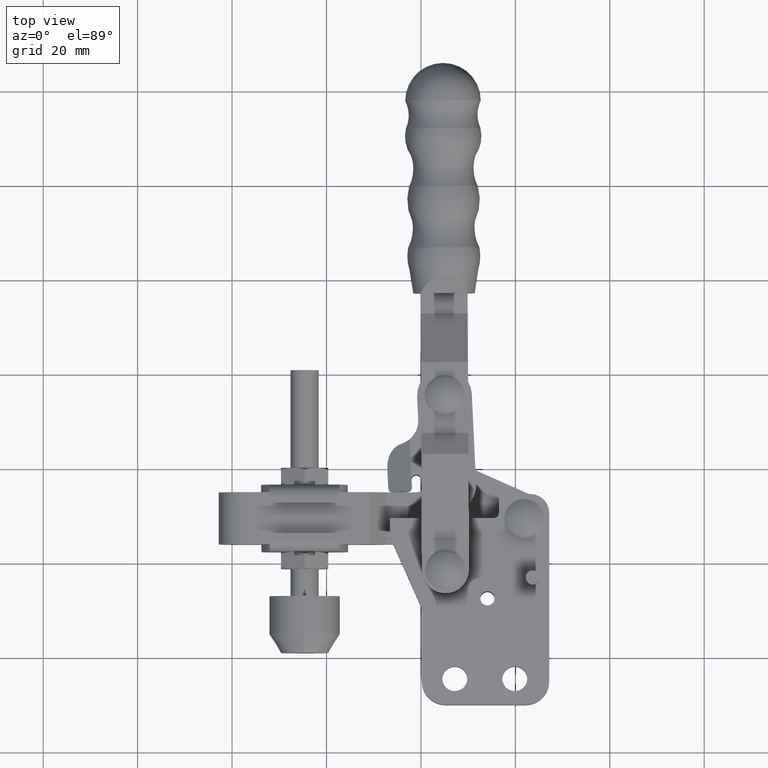
[diagram: clean part render]
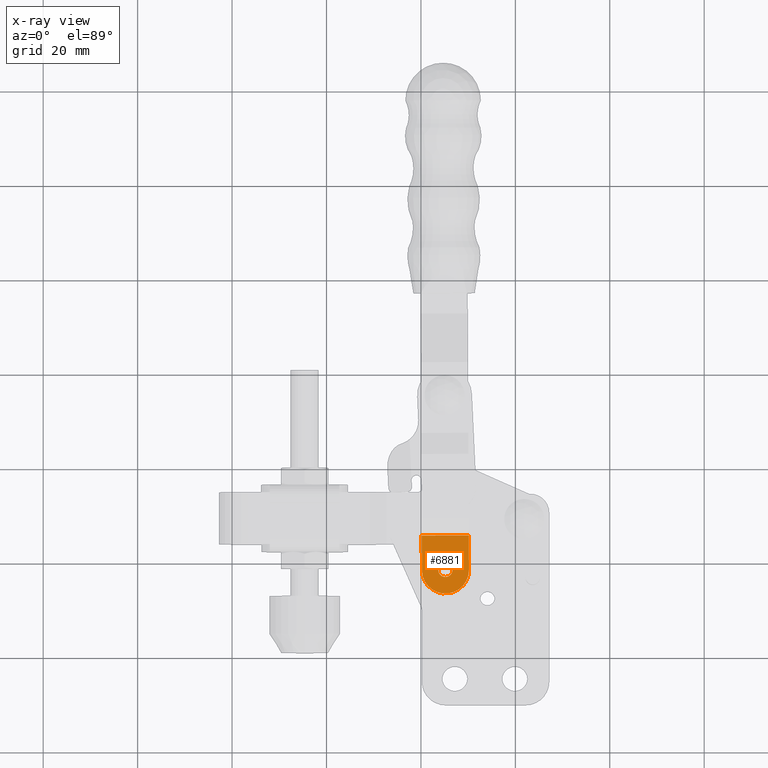
[diagram: x-ray — body ghosted, one internal face saturated and labeled with its STEP entity id]
A machine part, top view, then the same camera in x-ray: the body is ghosted and one INTERNAL B-rep face — a face not visible from any outside direction — is saturated and labeled: STEP entity #6881.
In plain terms, the highlighted planar face has unit normal (-0, 0, 1).
Its self-contained STEP definition (entity closure, byte-faithful):
#2 = EDGE_LOOP ( 'NONE', ( #4058, #9235 ) ) ;
#79 = AXIS2_PLACEMENT_3D ( 'NONE', #5606, #9070, #5972 ) ;
#278 = CARTESIAN_POINT ( 'NONE',  ( 20.14473255429879100, 25.67563352713829500, -19.68006977252602100 ) ) ;
#542 = ORIENTED_EDGE ( 'NONE', *, *, #8517, .F. ) ;
#576 = CARTESIAN_POINT ( 'NONE',  ( 25.18104760106660600, 18.39626203524204200, -19.68006977252599300 ) ) ;
#1172 = CARTESIAN_POINT ( 'NONE',  ( 30.14460854249589900, 25.72543534115104400, -19.68006977252602100 ) ) ;
#1228 = CARTESIAN_POINT ( 'NONE',  ( 25.18104760106654900, 16.89626203524197800, -19.68006977252599700 ) ) ;
#1391 = LINE ( 'NONE', #9063, #5769 ) ;
#1650 = LINE ( 'NONE', #1172, #8623 ) ;
#1818 = VECTOR ( 'NONE', #5126, 1000.000000000000000 ) ;
#2059 = DIRECTION ( 'NONE',  ( 1.926313670411397100E-017, -3.867234117384760800E-015, -1.000000000000000000 ) ) ;
#2559 = EDGE_CURVE ( 'NONE', #3209, #10249, #7508, .T. ) ;
#3209 = VERTEX_POINT ( 'NONE', #1228 ) ;
#3259 = AXIS2_PLACEMENT_3D ( 'NONE', #8929, #2059, #10853 ) ;
#3281 = PLANE ( 'NONE',  #7646 ) ;
#3335 = AXIS2_PLACEMENT_3D ( 'NONE', #576, #9856, #7093 ) ;
#3381 = VERTEX_POINT ( 'NONE', #278 ) ;
#4058 = ORIENTED_EDGE ( 'NONE', *, *, #2559, .F. ) ;
#4214 = VERTEX_POINT ( 'NONE', #8804 ) ;
#4323 = EDGE_CURVE ( 'NONE', #6704, #3381, #1650, .T. ) ;
#5126 = DIRECTION ( 'NONE',  ( -0.004980181401275393300, 0.9999875988197105500, -3.924214241013795900E-015 ) ) ;
#5606 = CARTESIAN_POINT ( 'NONE',  ( 25.18104760106654900, 18.39626203524197800, -19.68006977252600400 ) ) ;
#5769 = VECTOR ( 'NONE', #8672, 1000.000000000000000 ) ;
#5972 = DIRECTION ( 'NONE',  ( 0.0000000000000000000, 1.000000000000000000, -4.625929269271481400E-015 ) ) ;
#6465 = LINE ( 'NONE', #11135, #1818 ) ;
#6610 = DIRECTION ( 'NONE',  ( -1.954666912862561600E-017, 3.924165559340331700E-015, 1.000000000000000000 ) ) ;
#6704 = VERTEX_POINT ( 'NONE', #9315 ) ;
#6820 = VERTEX_POINT ( 'NONE', #6895 ) ;
#6881 = ADVANCED_FACE ( 'NONE', ( #8837, #11182 ), #3281, .F. ) ;
#6895 = CARTESIAN_POINT ( 'NONE',  ( 20.18110960696804300, 18.37136112823566200, -19.68006977252600400 ) ) ;
#7093 = DIRECTION ( 'NONE',  ( 0.004980181401275506100, -0.9999875988197105500, 4.163336342344331500E-015 ) ) ;
#7181 = DIRECTION ( 'NONE',  ( -0.9999875988197105500, -0.004980181401275393300, -3.370392705513214300E-021 ) ) ;
#7259 = CIRCLE ( 'NONE', #3259, 1.500000000000001300 ) ;
#7482 = ORIENTED_EDGE ( 'NONE', *, *, #8797, .T. ) ;
#7495 = EDGE_CURVE ( 'NONE', #4214, #6704, #6465, .T. ) ;
#7508 = CIRCLE ( 'NONE', #79, 1.500000000000001300 ) ;
#7646 = AXIS2_PLACEMENT_3D ( 'NONE', #8644, #6610, #7726 ) ;
#7726 = DIRECTION ( 'NONE',  ( 0.004980181401275393300, -0.9999875988197105500, 3.924214241013795900E-015 ) ) ;
#8517 = EDGE_CURVE ( 'NONE', #6820, #4214, #10704, .T. ) ;
#8623 = VECTOR ( 'NONE', #7181, 1000.000000000000000 ) ;
#8644 = CARTESIAN_POINT ( 'NONE',  ( 30.20588650217152700, 13.42122494815004100, -19.68006977252597200 ) ) ;
#8672 = DIRECTION ( 'NONE',  ( -0.004980181401275393300, 0.9999875988197105500, -3.924214241013795900E-015 ) ) ;
#8718 = ORIENTED_EDGE ( 'NONE', *, *, #7495, .F. ) ;
#8797 = EDGE_CURVE ( 'NONE', #6820, #3381, #1391, .T. ) ;
#8804 = CARTESIAN_POINT ( 'NONE',  ( 30.18098559516516100, 18.42116294224840800, -19.68006977252600400 ) ) ;
#8837 = FACE_OUTER_BOUND ( 'NONE', #10075, .T. ) ;
#8929 = CARTESIAN_POINT ( 'NONE',  ( 25.18104760106654900, 18.39626203524197800, -19.68006977252600400 ) ) ;
#9063 = CARTESIAN_POINT ( 'NONE',  ( 20.20601051397441900, 13.37142313413729200, -19.68006977252597200 ) ) ;
#9070 = DIRECTION ( 'NONE',  ( 1.926313670411397100E-017, -3.867234117384760800E-015, -1.000000000000000000 ) ) ;
#9235 = ORIENTED_EDGE ( 'NONE', *, *, #10496, .F. ) ;
#9315 = CARTESIAN_POINT ( 'NONE',  ( 30.14460854249589900, 25.72543534115104400, -19.68006977252602100 ) ) ;
#9856 = DIRECTION ( 'NONE',  ( -1.954666912862560900E-017, 3.924165559340330100E-015, 1.000000000000000000 ) ) ;
#9970 = ORIENTED_EDGE ( 'NONE', *, *, #4323, .F. ) ;
#10004 = CARTESIAN_POINT ( 'NONE',  ( 25.18104760106654900, 19.89626203524198200, -19.68006977252601100 ) ) ;
#10075 = EDGE_LOOP ( 'NONE', ( #8718, #542, #7482, #9970 ) ) ;
#10249 = VERTEX_POINT ( 'NONE', #10004 ) ;
#10496 = EDGE_CURVE ( 'NONE', #10249, #3209, #7259, .T. ) ;
#10704 = CIRCLE ( 'NONE', #3335, 5.000000000000007100 ) ;
#10853 = DIRECTION ( 'NONE',  ( 0.0000000000000000000, 1.000000000000000000, -4.625929269271481400E-015 ) ) ;
#11135 = CARTESIAN_POINT ( 'NONE',  ( 30.20588650217152700, 13.42122494815004100, -19.68006977252597200 ) ) ;
#11182 = FACE_BOUND ( 'NONE', #2, .T. ) ;